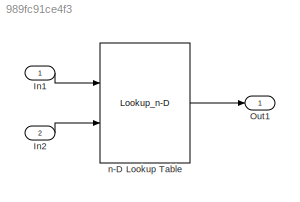
MODEL slx_989fc91ce4f3
KIND model
CONFIG AbsTol = auto
CONFIG EnableMultiTasking = on
CONFIG FixedStep = 0.200000
CONFIG MaxStep = auto
CONFIG MinStep = auto
CONFIG RelTol = 1e-3
CONFIG SampleTimeConstraint = Unconstrained
CONFIG Solver = FixedStepDiscrete
CONFIG SolverName = FixedStepDiscrete
CONFIG StartTime = 0.0
CONFIG StopTime = 10.0
WORKSPACE source: MAT-file member
WORKSPACE compositionalMap: struct (value not decoded)
BLOCK [Inport] In1
  IconDisplay = Port number
  OutMax = 5
  OutMin = 0
BLOCK [Inport] In2
  IconDisplay = Port number
  OutMax = 3
  OutMin = -1
  Port = 2
BLOCK [Outport] Out1
  IconDisplay = Port number
BLOCK [Lookup_n-D] n-D Lookup Table
  BreakpointsForDimension1 = [1.2 2.3 3.9]
  BreakpointsForDimension2 = [0 1.5 ]
  BreakpointsForDimension3 = [5 6]
  ExtrapMethod = Clip
  InternalRulePriority = Speed
  InterpMethod = Nearest
  Ports = [2, 1]
  RndMeth = Simplest
  Table = [10 20 ; 40 60 ; 80 90]
LINE In1:1 -> n-D Lookup Table:1
LINE In2:1 -> n-D Lookup Table:2
LINE n-D Lookup Table:1 -> Out1:1
